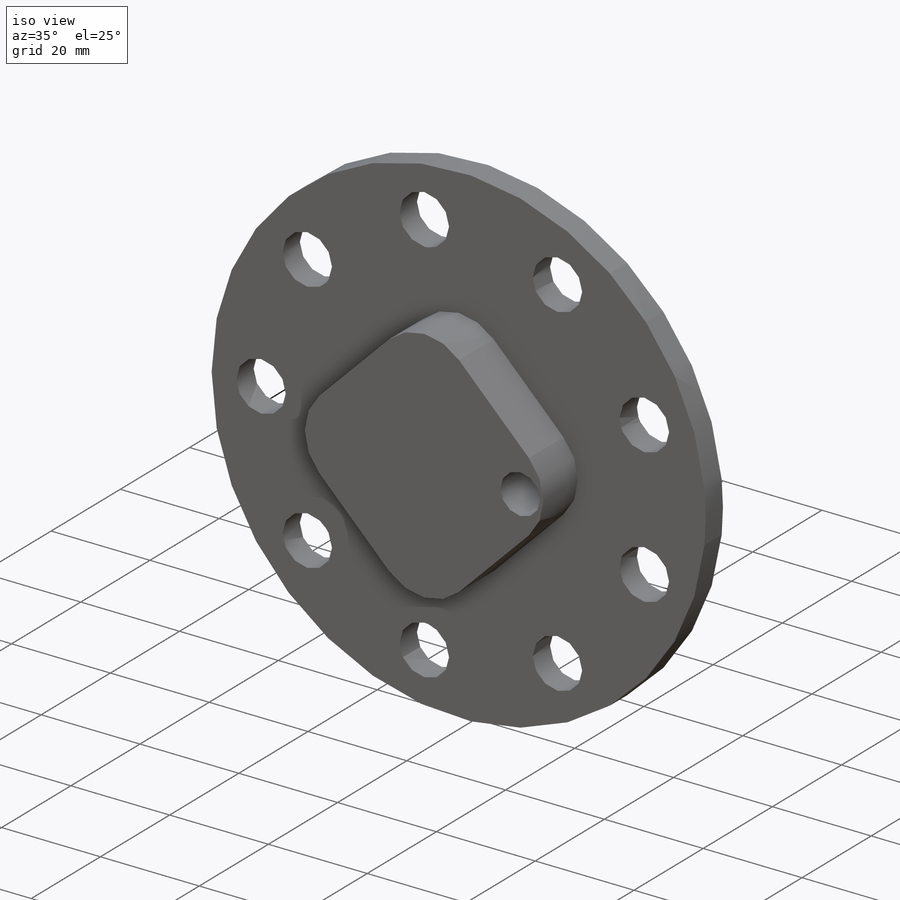
[diagram: iso view]
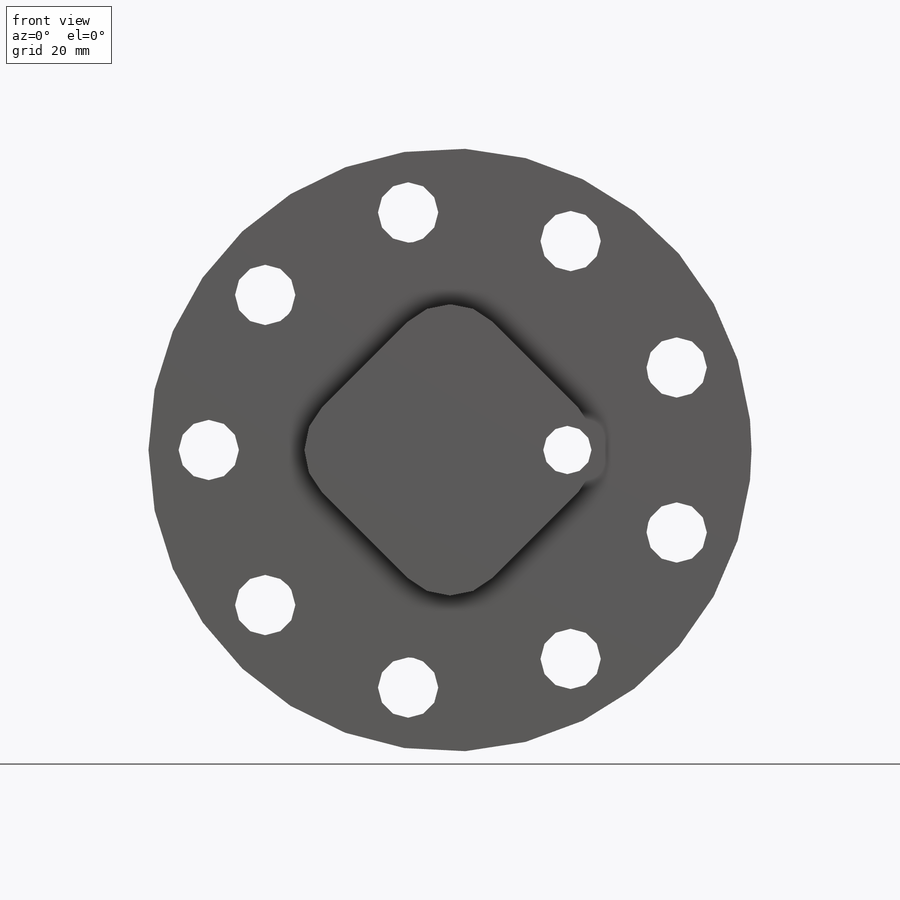
[diagram: front view]
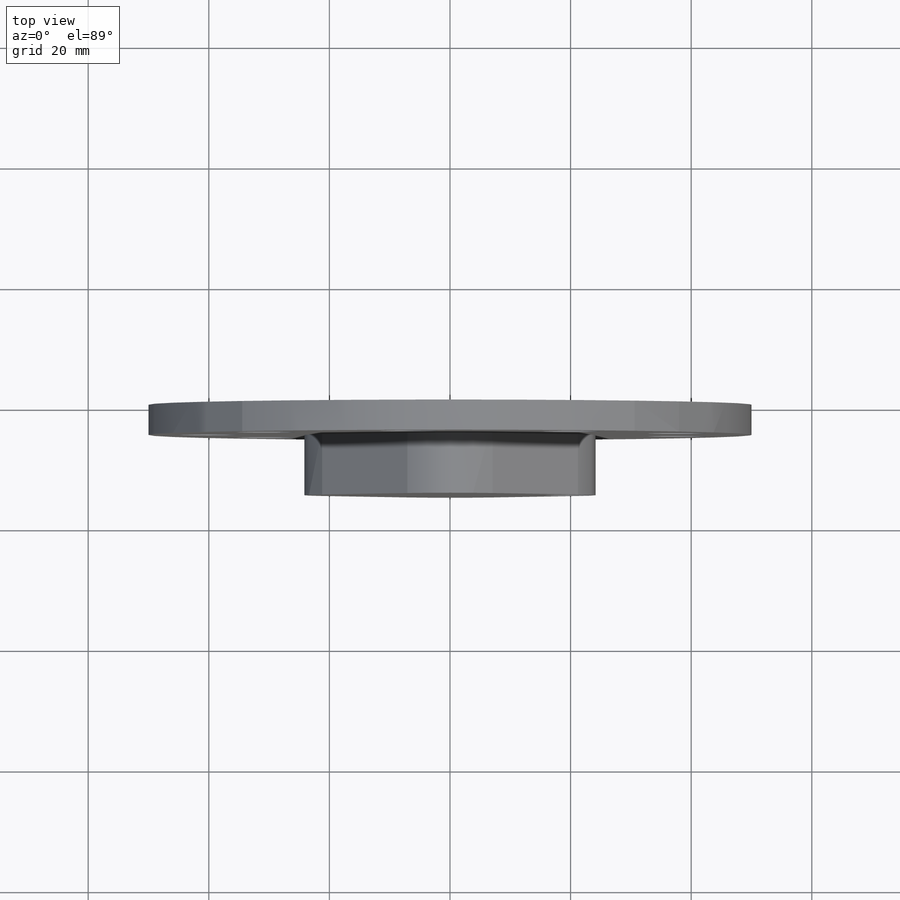
[diagram: top view]
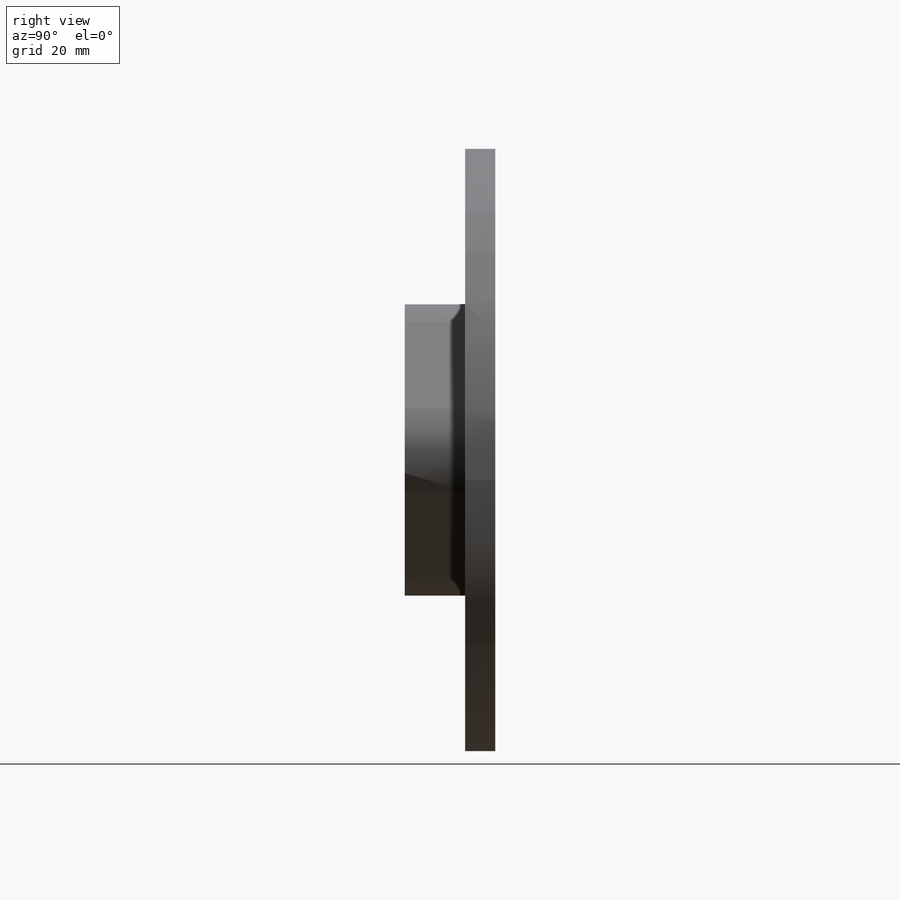
[diagram: right view]
SOLIDWORKS PART (.sldprt)
format: sldprt  version: not decoded by parser v0  size: 227,328 bytes
history: native  units: mm
features: sketch x4, plane x3, extrude x3, material x1, cut_extrude x1, pattern_circular x1, fillet x1 (+10 scaffold rows collapsed)
feature tree (24):
  scaffold x10  (default folders/planes/origin — collapsed)
  material  "Materiál <není určen>"
  plane  "Přední rovina"
  plane  "Horní rovina"
  plane  "Pravá rovina"
  sketch  "Skica1"  dims[D1=100.0mm]
  extrude  "Vysunout1"  Depth=5mm
  sketch  "Skica2"  dims[c1.D1=80.0mm c1.D2=40.0mm c1.D3=40.0mm c2.D2=40.0mm c2.D3=40.0mm]
  sketch  "Skica3"  dims[D1=10.0mm]
  cut_extrude  "Odebrat vysunutím1"  [1 undecoded]
  pattern_circular  "Kruhové pole1"  Count=9 Angle=360deg
  extrude  "Vysunout2"  Depth=10mm
  fillet  "Zaoblit2"  Radius=10mm
  sketch  "Skica5"  dims[D1=8.0mm]
  extrude  "Odebrat vysunutím2"  [1 undecoded]
decode coverage: 8 of 10 modeling features carry decoded parameters
note: 2 parameter values undecoded
note: suppression state not decoded; provenance and decode notes live in map.json
